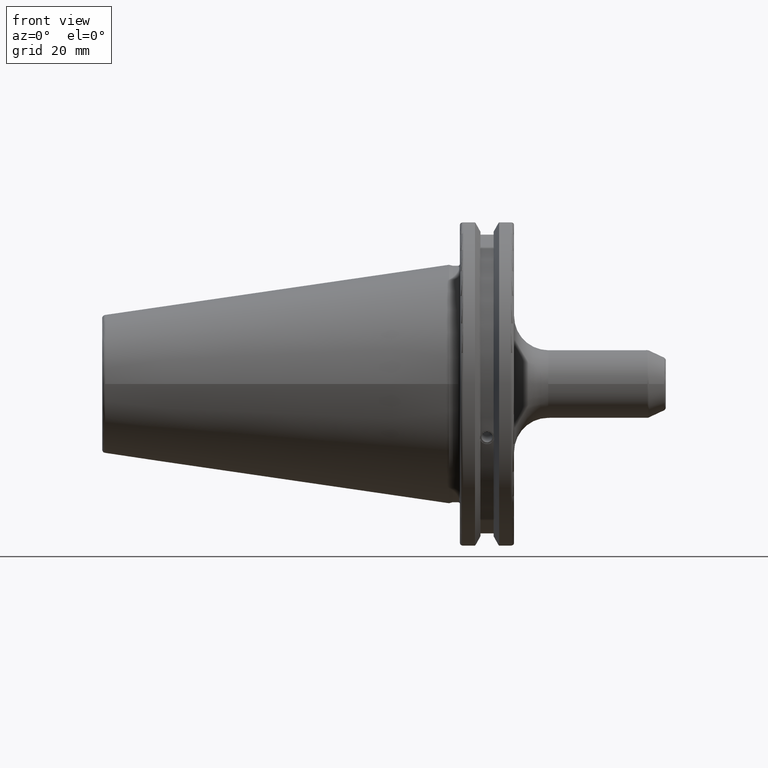
[diagram: clean part render]
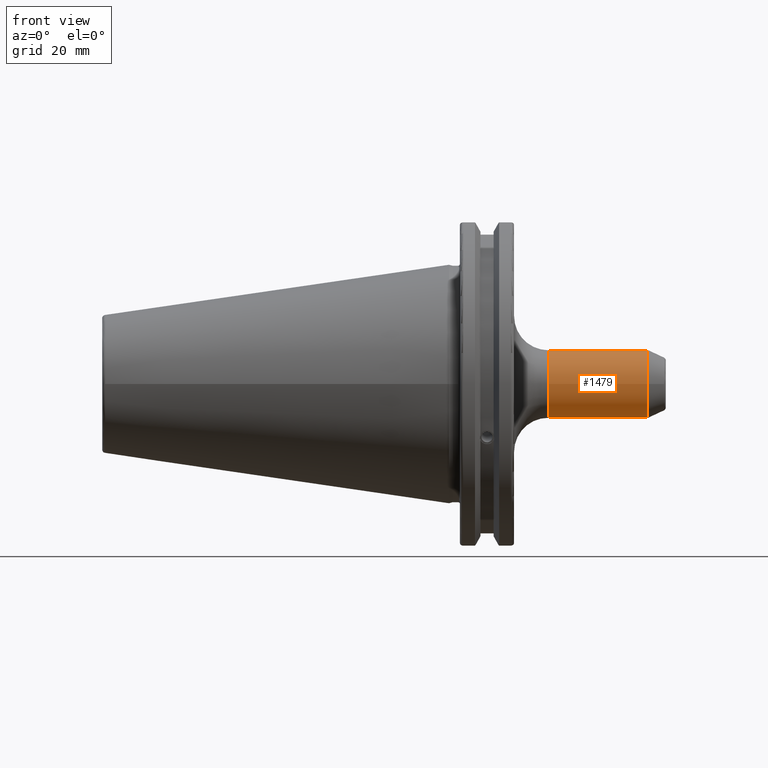
[diagram: same view with one face highlighted and labeled with its STEP entity id]
A machine part, front view. The second image highlights one B-rep face of the part: STEP entity #1479.
In plain terms, the highlighted cylindrical surface (bore or boss wall) has radius 9.906 mm, axis along (1, 0, 0).
Its self-contained STEP definition (entity closure, byte-faithful):
#70=FACE_BOUND('',#219,.T.);
#100=CYLINDRICAL_SURFACE('',#1602,9.906);
#131=FACE_OUTER_BOUND('',#218,.T.);
#218=EDGE_LOOP('',(#1037,#1038,#1039,#1040,#1041,#1042));
#219=EDGE_LOOP('',(#1043,#1044));
#325=CIRCLE('',#1597,9.906);
#326=CIRCLE('',#1598,9.906);
#329=CIRCLE('',#1603,9.906);
#330=CIRCLE('',#1604,9.906);
#395=LINE('',#2293,#487);
#487=VECTOR('',#1796,9.906);
#575=B_SPLINE_CURVE_WITH_KNOTS('',3,(#2170,#2171,#2172,#2173,#2174,#2175,
#2176,#2177,#2178,#2179,#2180,#2181,#2182,#2183,#2184,#2185,#2186,#2187),
 .UNSPECIFIED.,.F.,.F.,(4,2,2,2,2,2,2,2,4),(0.529072367438421,0.663907434953962,
0.798742502469502,0.928443618673172,1.05814473487684,1.18784585108051,1.31754696728418,
1.45238203479972,1.58721710231526),.UNSPECIFIED.);
#576=B_SPLINE_CURVE_WITH_KNOTS('',3,(#2191,#2192,#2193,#2194,#2195,#2196,
#2197,#2198,#2199,#2200,#2201,#2202,#2203,#2204,#2205,#2206,#2207,#2208,
#2209),.UNSPECIFIED.,.F.,.F.,(4,2,2,2,3,2,2,2,4),(1.58721710231526,1.7220521698308,
1.85688723734634,1.98658835355001,2.11628946975368,2.24599058595736,2.37569170216103,
2.51052676967657,2.64536183719211),.UNSPECIFIED.);
#617=VERTEX_POINT('',#2168);
#618=VERTEX_POINT('',#2169);
#630=VERTEX_POINT('',#2280);
#631=VERTEX_POINT('',#2282);
#634=VERTEX_POINT('',#2292);
#635=VERTEX_POINT('',#2294);
#771=EDGE_CURVE('',#617,#618,#575,.T.);
#774=EDGE_CURVE('',#618,#617,#576,.T.);
#789=EDGE_CURVE('',#630,#631,#325,.T.);
#790=EDGE_CURVE('',#631,#630,#326,.T.);
#794=EDGE_CURVE('',#631,#634,#395,.T.);
#795=EDGE_CURVE('',#635,#634,#329,.T.);
#796=EDGE_CURVE('',#634,#635,#330,.T.);
#1037=ORIENTED_EDGE('',*,*,#790,.F.);
#1038=ORIENTED_EDGE('',*,*,#794,.T.);
#1039=ORIENTED_EDGE('',*,*,#795,.F.);
#1040=ORIENTED_EDGE('',*,*,#796,.F.);
#1041=ORIENTED_EDGE('',*,*,#794,.F.);
#1042=ORIENTED_EDGE('',*,*,#789,.F.);
#1043=ORIENTED_EDGE('',*,*,#771,.T.);
#1044=ORIENTED_EDGE('',*,*,#774,.T.);
#1479=ADVANCED_FACE('',(#131,#70),#100,.T.);
#1597=AXIS2_PLACEMENT_3D('',#2283,#1783,#1784);
#1598=AXIS2_PLACEMENT_3D('',#2284,#1785,#1786);
#1602=AXIS2_PLACEMENT_3D('',#2291,#1794,#1795);
#1603=AXIS2_PLACEMENT_3D('',#2295,#1797,#1798);
#1604=AXIS2_PLACEMENT_3D('',#2296,#1799,#1800);
#1783=DIRECTION('center_axis',(1.,0.,0.));
#1784=DIRECTION('ref_axis',(0.,-1.,1.83697019872103E-16));
#1785=DIRECTION('center_axis',(1.,0.,0.));
#1786=DIRECTION('ref_axis',(0.,-1.,1.83697019872103E-16));
#1794=DIRECTION('center_axis',(1.,0.,0.));
#1795=DIRECTION('ref_axis',(0.,1.,0.));
#1796=DIRECTION('',(-1.,0.,0.));
#1797=DIRECTION('center_axis',(-1.,0.,0.));
#1798=DIRECTION('ref_axis',(0.,-1.,-1.22464679914735E-16));
#1799=DIRECTION('center_axis',(-1.,0.,0.));
#1800=DIRECTION('ref_axis',(0.,-1.,-1.22464679914735E-16));
#2168=CARTESIAN_POINT('',(52.05,9.906,0.));
#2169=CARTESIAN_POINT('',(44.55,9.906,0.));
#2170=CARTESIAN_POINT('Ctrl Pts',(52.05,9.906,-4.16333634234434E-16));
#2171=CARTESIAN_POINT('Ctrl Pts',(52.05,9.906,0.449450225051801));
#2172=CARTESIAN_POINT('Ctrl Pts',(51.9320448233003,9.87248944388633,0.914293160023826));
#2173=CARTESIAN_POINT('Ctrl Pts',(51.491792873787,9.76103690400476,1.73900425012002));
#2174=CARTESIAN_POINT('Ctrl Pts',(51.1703277651678,9.68503796084408,2.09957744918128));
#2175=CARTESIAN_POINT('Ctrl Pts',(50.4832179384077,9.55264449134434,2.63614138826279));
#2176=CARTESIAN_POINT('Ctrl Pts',(50.0730915749197,9.48647771909782,2.85632065330157));
#2177=CARTESIAN_POINT('Ctrl Pts',(49.1977221206165,9.39461398580354,3.14532245764261));
#2178=CARTESIAN_POINT('Ctrl Pts',(48.7323370540122,9.37008502803324,3.21408502803324));
#2179=CARTESIAN_POINT('Ctrl Pts',(47.8676629459877,9.37008502803324,3.21408502803324));
#2180=CARTESIAN_POINT('Ctrl Pts',(47.4022778793835,9.39461398580354,3.14532245764261));
#2181=CARTESIAN_POINT('Ctrl Pts',(46.5269084250803,9.48647771909782,2.85632065330157));
#2182=CARTESIAN_POINT('Ctrl Pts',(46.1167820615923,9.55264449134434,2.63614138826279));
#2183=CARTESIAN_POINT('Ctrl Pts',(45.4296722348322,9.68503796084408,2.09957744918128));
#2184=CARTESIAN_POINT('Ctrl Pts',(45.108207126213,9.76103690400476,1.73900425012002));
#2185=CARTESIAN_POINT('Ctrl Pts',(44.6679551766997,9.87248944388633,0.914293160023826));
#2186=CARTESIAN_POINT('Ctrl Pts',(44.55,9.906,0.449450225051801));
#2187=CARTESIAN_POINT('Ctrl Pts',(44.55,9.906,2.77555756156289E-16));
#2191=CARTESIAN_POINT('Ctrl Pts',(44.55,9.906,1.45716771982052E-15));
#2192=CARTESIAN_POINT('Ctrl Pts',(44.55,9.906,-0.4494502250518));
#2193=CARTESIAN_POINT('Ctrl Pts',(44.6679551766997,9.87248944388633,-0.914293160023826));
#2194=CARTESIAN_POINT('Ctrl Pts',(45.108207126213,9.76103690400476,-1.73900425012002));
#2195=CARTESIAN_POINT('Ctrl Pts',(45.4296722348322,9.68503796084408,-2.09957744918128));
#2196=CARTESIAN_POINT('Ctrl Pts',(46.1167820615923,9.55264449134434,-2.63614138826279));
#2197=CARTESIAN_POINT('Ctrl Pts',(46.5269084250803,9.48647771909782,-2.85632065330157));
#2198=CARTESIAN_POINT('Ctrl Pts',(47.4022778793835,9.39461398580354,-3.14532245764261));
#2199=CARTESIAN_POINT('Ctrl Pts',(47.8676629459877,9.37008502803324,-3.21408502803324));
#2200=CARTESIAN_POINT('Ctrl Pts',(48.3,9.37008502803324,-3.21408502803324));
#2201=CARTESIAN_POINT('Ctrl Pts',(48.7323370540122,9.37008502803324,-3.21408502803324));
#2202=CARTESIAN_POINT('Ctrl Pts',(49.1977221206165,9.39461398580354,-3.14532245764261));
#2203=CARTESIAN_POINT('Ctrl Pts',(50.0730915749197,9.48647771909782,-2.85632065330157));
#2204=CARTESIAN_POINT('Ctrl Pts',(50.4832179384077,9.55264449134434,-2.63614138826279));
#2205=CARTESIAN_POINT('Ctrl Pts',(51.1703277651678,9.68503796084408,-2.09957744918128));
#2206=CARTESIAN_POINT('Ctrl Pts',(51.491792873787,9.76103690400476,-1.73900425012002));
#2207=CARTESIAN_POINT('Ctrl Pts',(51.9320448233003,9.87248944388633,-0.914293160023826));
#2208=CARTESIAN_POINT('Ctrl Pts',(52.05,9.906,-0.449450225051801));
#2209=CARTESIAN_POINT('Ctrl Pts',(52.05,9.906,-2.08166817117217E-16));
#2280=CARTESIAN_POINT('',(58.1186216866111,-1.21313511923537E-15,9.906));
#2282=CARTESIAN_POINT('',(58.1186216866111,-9.906,-1.21313511923537E-15));
#2283=CARTESIAN_POINT('Origin',(58.1186216866111,0.,0.));
#2284=CARTESIAN_POINT('Origin',(58.1186216866111,0.,0.));
#2291=CARTESIAN_POINT('Origin',(38.695158174627,0.,0.));
#2292=CARTESIAN_POINT('',(29.05,-9.906,-1.21313511923537E-15));
#2293=CARTESIAN_POINT('',(38.695158174627,-9.906,-1.21313511923537E-15));
#2294=CARTESIAN_POINT('',(29.05,-1.21313511923537E-15,-9.906));
#2295=CARTESIAN_POINT('Origin',(29.05,0.,0.));
#2296=CARTESIAN_POINT('Origin',(29.05,0.,0.));